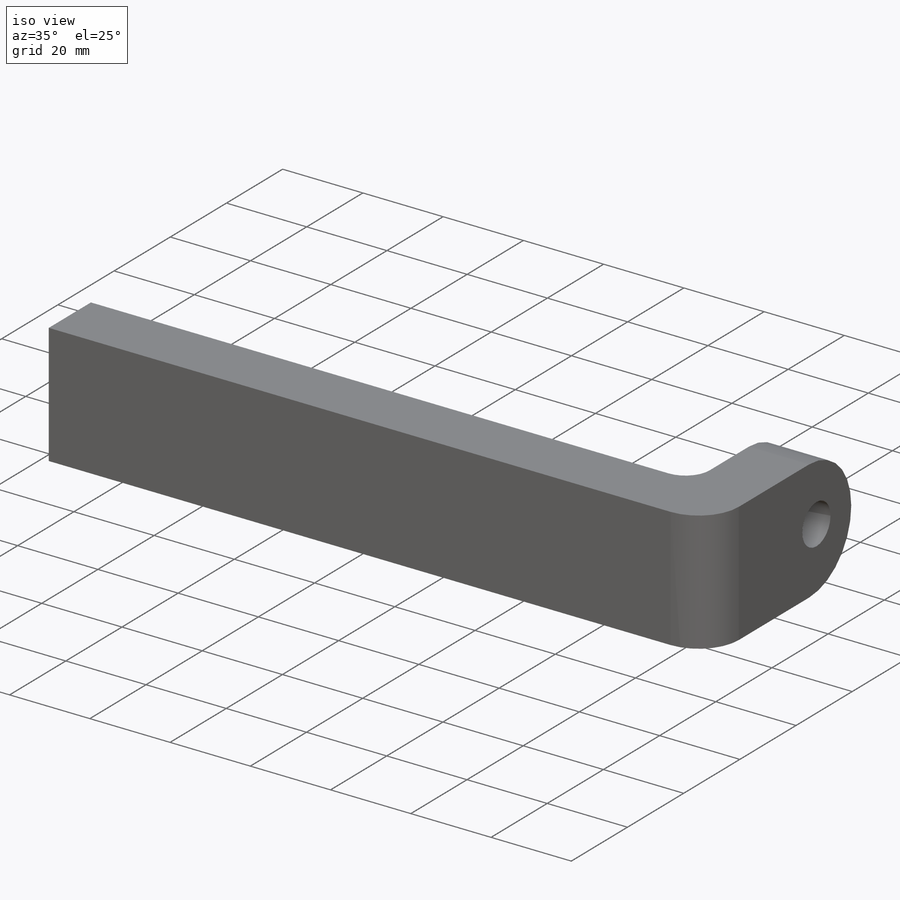
[diagram: iso view]
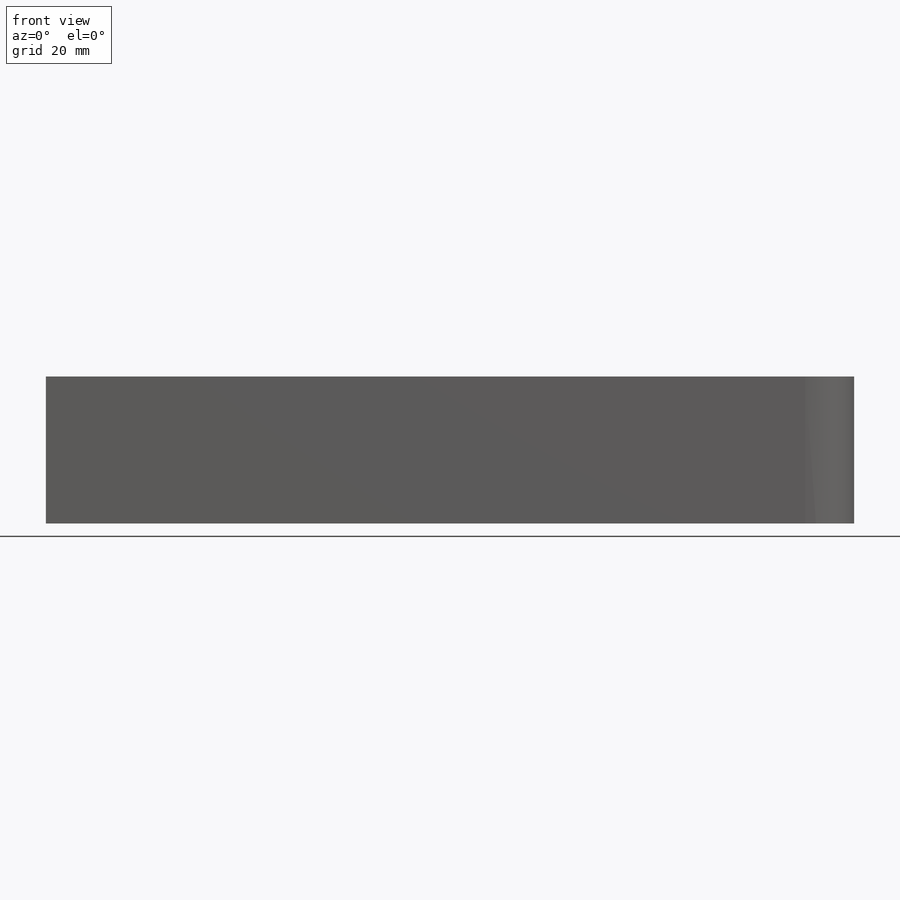
[diagram: front view]
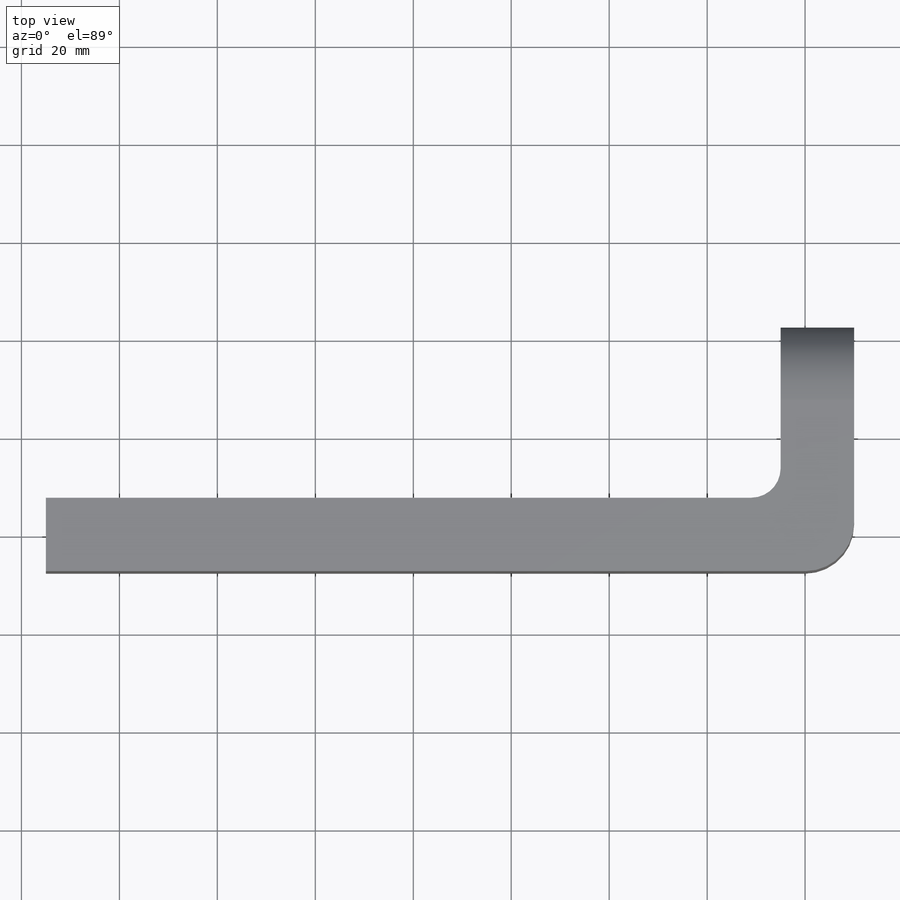
[diagram: top view]
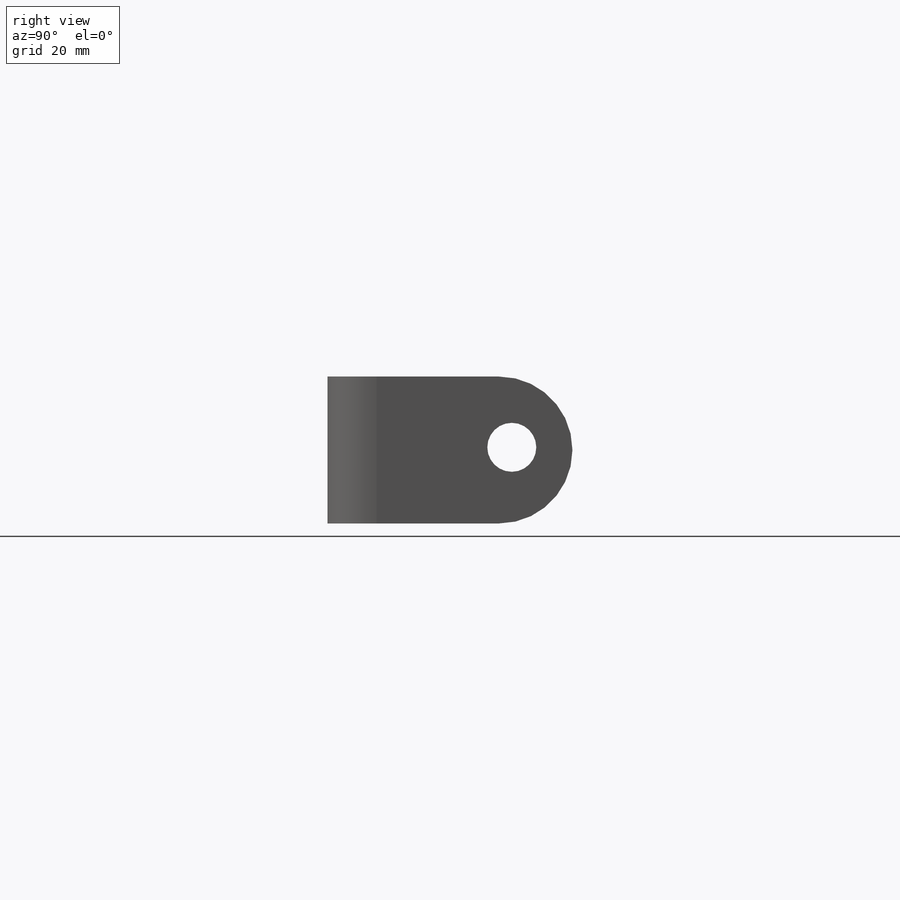
[diagram: right view]
SOLIDWORKS PART (.sldprt)
format: sldprt  version: not decoded by parser v0  size: 155,136 bytes
history: native  units: mm
features: sketch x2, fillet x2, material x1, extrude x1 (+12 scaffold rows collapsed)
feature tree (18):
  scaffold x12  (default folders/planes/origin — collapsed)
  material  "Material <not specified>"
  sketch  "Sketch3"  dims[c1.D1=6.0mm c1.D2=10.0mm c2.D1=150.0mm c2.D2=15.0mm c2.D3=15.0mm c2.D4=50.0mm]
  extrude  "Boss-Extrude2"  Depth=30mm
  fillet  "Fillet1"  Radius=15mm
  fillet  "Fillet3"  Radius=15mm
  sketch  "Sketch4"  dims[c1.D1=10.0mm c2.D1=20.0mm]
decode coverage: 5 of 5 modeling features carry decoded parameters
note: suppression state not decoded; provenance and decode notes live in map.json
